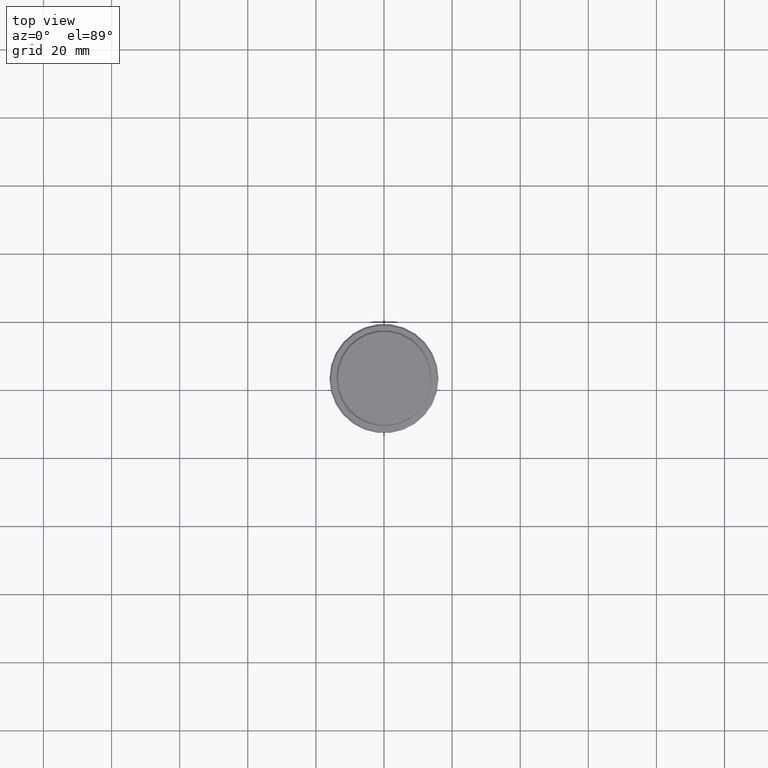
[diagram: clean part render]
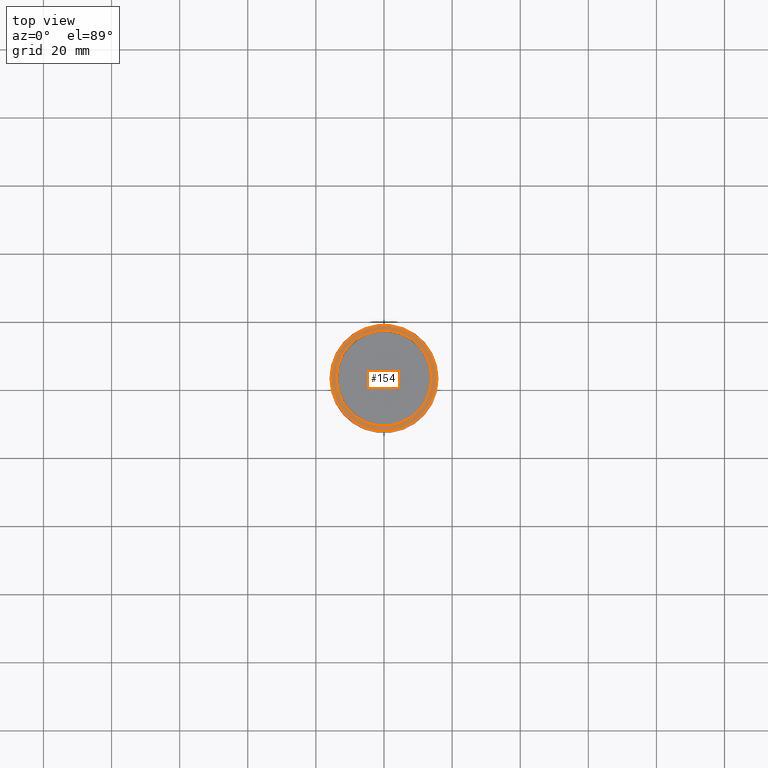
[diagram: same view with one face highlighted and labeled with its STEP entity id]
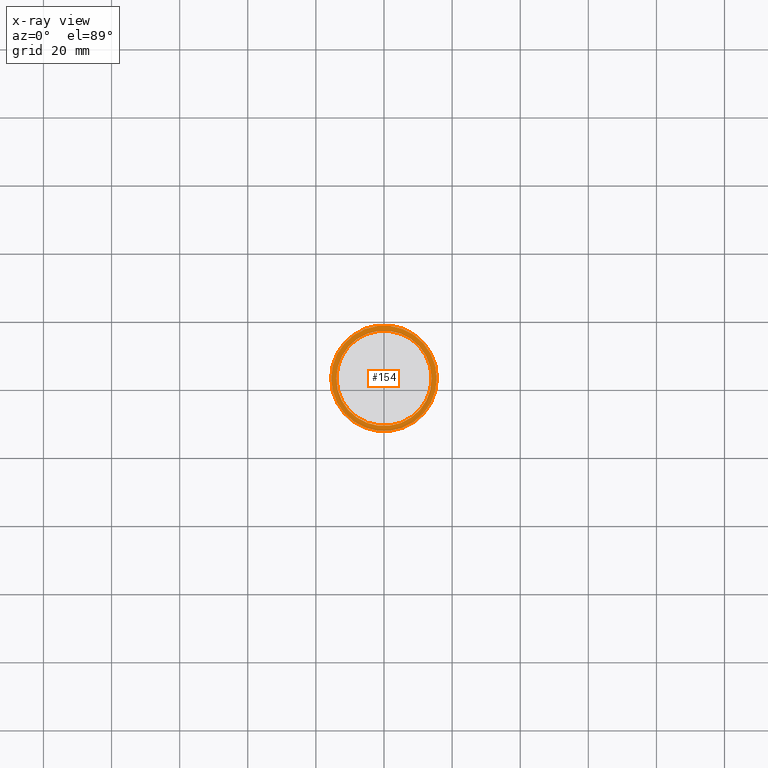
[diagram: x-ray of the same camera — body ghosted, the highlighted face saturated]
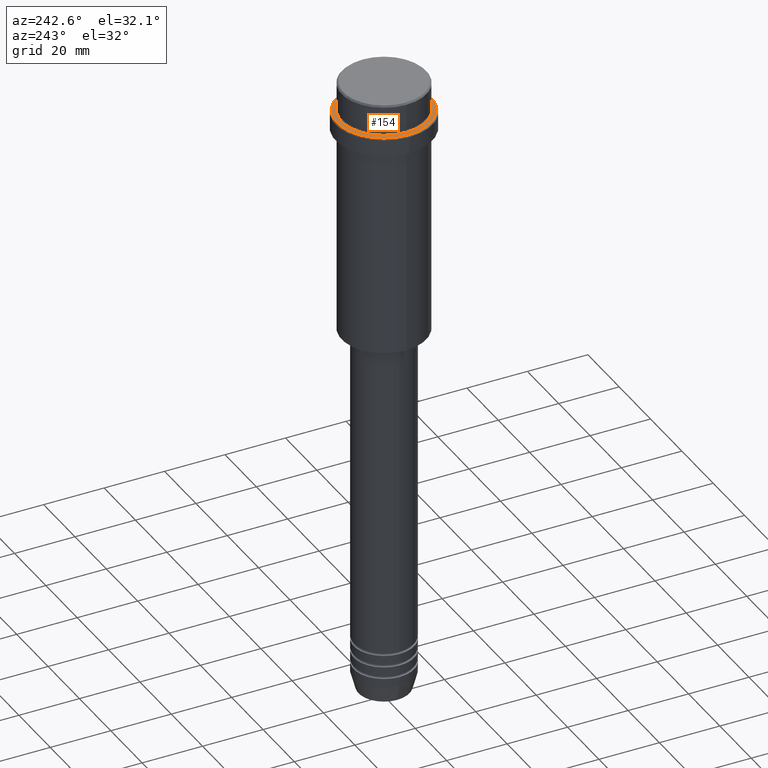
[diagram: same view with one face highlighted and labeled with its STEP entity id]
A machine part, top view. The second image highlights one B-rep face of the part: STEP entity #154.
The next image is the same camera in x-ray: the body ghosted, the highlighted face saturated — about 0% of this face is hidden behind the body in this view.
A second angle (auxiliary view) of the same face is appended — the face is thin or edge-on in the first view.
In plain terms, the highlighted planar face has unit normal (0, -0, 1).
Its self-contained STEP definition (entity closure, byte-faithful):
#56 = DIRECTION ( 'NONE',  ( 1.000000000000000000, 0.000000000000000000, 0.000000000000000000 ) ) ;
#60 = AXIS2_PLACEMENT_3D ( 'NONE', #1335, #693, #710 ) ;
#68 = DIRECTION ( 'NONE',  ( 0.000000000000000000, -0.000000000000000000, 1.000000000000000000 ) ) ;
#76 = EDGE_LOOP ( 'NONE', ( #341, #726 ) ) ;
#82 = CARTESIAN_POINT ( 'NONE',  ( 0.000000000000000000, 13.49999999999996625, -9.999999999999998224 ) ) ;
#91 = VERTEX_POINT ( 'NONE', #220 ) ;
#147 = EDGE_CURVE ( 'NONE', #1043, #494, #725, .T. ) ;
#154 = ADVANCED_FACE ( 'NONE', ( #170, #1044 ), #210, .T. ) ;
#156 = VERTEX_POINT ( 'NONE', #643 ) ;
#170 = FACE_OUTER_BOUND ( 'NONE', #1385, .T. ) ;
#210 = PLANE ( 'NONE',  #805 ) ;
#220 = CARTESIAN_POINT ( 'NONE',  ( -13.99999999999996803, 1.714505518806290694E-15, -9.999999999999998224 ) ) ;
#274 = DIRECTION ( 'NONE',  ( 1.000000000000000000, 0.000000000000000000, 0.000000000000000000 ) ) ;
#283 = CARTESIAN_POINT ( 'NONE',  ( 0.000000000000000000, 0.000000000000000000, -9.999999999999998224 ) ) ;
#303 = DIRECTION ( 'NONE',  ( 0.000000000000000000, 0.000000000000000000, -1.000000000000000000 ) ) ;
#341 = ORIENTED_EDGE ( 'NONE', *, *, #1261, .T. ) ;
#408 = AXIS2_PLACEMENT_3D ( 'NONE', #860, #1079, #56 ) ;
#461 = CARTESIAN_POINT ( 'NONE',  ( -15.49999999999995737, 0.000000000000000000, -9.999999999999998224 ) ) ;
#486 = DIRECTION ( 'NONE',  ( 1.000000000000000000, 0.000000000000000000, 0.000000000000000000 ) ) ;
#494 = VERTEX_POINT ( 'NONE', #952 ) ;
#600 = EDGE_CURVE ( 'NONE', #91, #156, #806, .T. ) ;
#604 = AXIS2_PLACEMENT_3D ( 'NONE', #845, #303, #486 ) ;
#643 = CARTESIAN_POINT ( 'NONE',  ( 13.99999999999996803, 0.000000000000000000, -9.999999999999998224 ) ) ;
#693 = DIRECTION ( 'NONE',  ( -0.000000000000000000, -0.000000000000000000, 1.000000000000000000 ) ) ;
#707 = CIRCLE ( 'NONE', #746, 15.49999999999995737 ) ;
#710 = DIRECTION ( 'NONE',  ( 1.000000000000000000, 0.000000000000000000, 0.000000000000000000 ) ) ;
#725 = CIRCLE ( 'NONE', #60, 15.49999999999995737 ) ;
#726 = ORIENTED_EDGE ( 'NONE', *, *, #600, .T. ) ;
#746 = AXIS2_PLACEMENT_3D ( 'NONE', #283, #942, #274 ) ;
#805 = AXIS2_PLACEMENT_3D ( 'NONE', #82, #68, #1064 ) ;
#806 = CIRCLE ( 'NONE', #408, 13.99999999999996803 ) ;
#845 = CARTESIAN_POINT ( 'NONE',  ( 0.000000000000000000, 0.000000000000000000, -9.999999999999998224 ) ) ;
#860 = CARTESIAN_POINT ( 'NONE',  ( 0.000000000000000000, 0.000000000000000000, -9.999999999999998224 ) ) ;
#889 = ORIENTED_EDGE ( 'NONE', *, *, #147, .T. ) ;
#942 = DIRECTION ( 'NONE',  ( -0.000000000000000000, -0.000000000000000000, 1.000000000000000000 ) ) ;
#952 = CARTESIAN_POINT ( 'NONE',  ( 15.49999999999995737, 1.928818708657077006E-15, -9.999999999999998224 ) ) ;
#1043 = VERTEX_POINT ( 'NONE', #461 ) ;
#1044 = FACE_BOUND ( 'NONE', #76, .T. ) ;
#1064 = DIRECTION ( 'NONE',  ( 1.000000000000000000, 0.000000000000000000, 0.000000000000000000 ) ) ;
#1078 = ORIENTED_EDGE ( 'NONE', *, *, #1241, .T. ) ;
#1079 = DIRECTION ( 'NONE',  ( 0.000000000000000000, 0.000000000000000000, -1.000000000000000000 ) ) ;
#1241 = EDGE_CURVE ( 'NONE', #494, #1043, #707, .T. ) ;
#1261 = EDGE_CURVE ( 'NONE', #156, #91, #1288, .T. ) ;
#1288 = CIRCLE ( 'NONE', #604, 13.99999999999996803 ) ;
#1335 = CARTESIAN_POINT ( 'NONE',  ( 0.000000000000000000, 0.000000000000000000, -9.999999999999998224 ) ) ;
#1385 = EDGE_LOOP ( 'NONE', ( #889, #1078 ) ) ;